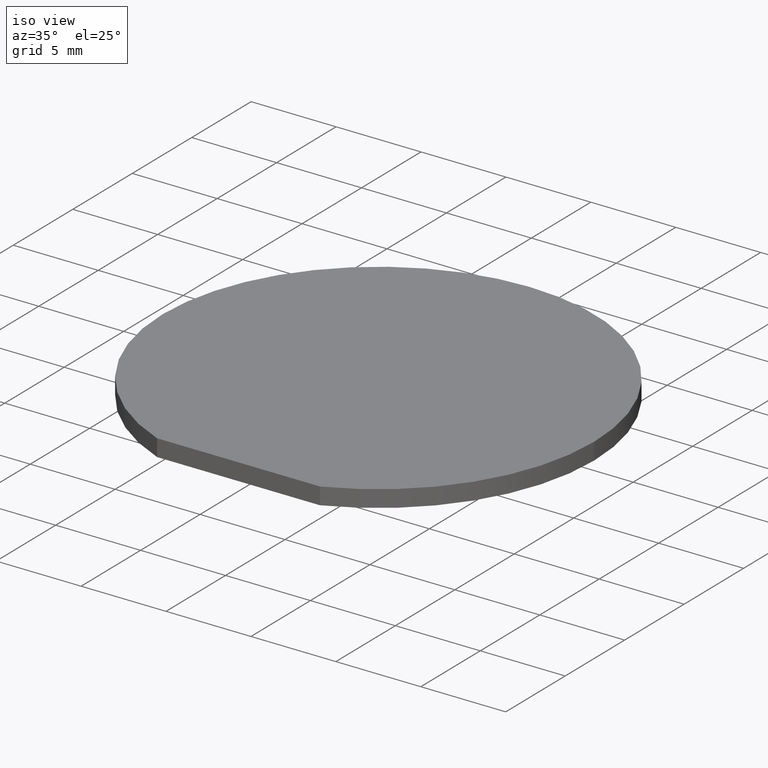
[diagram: clean part render]
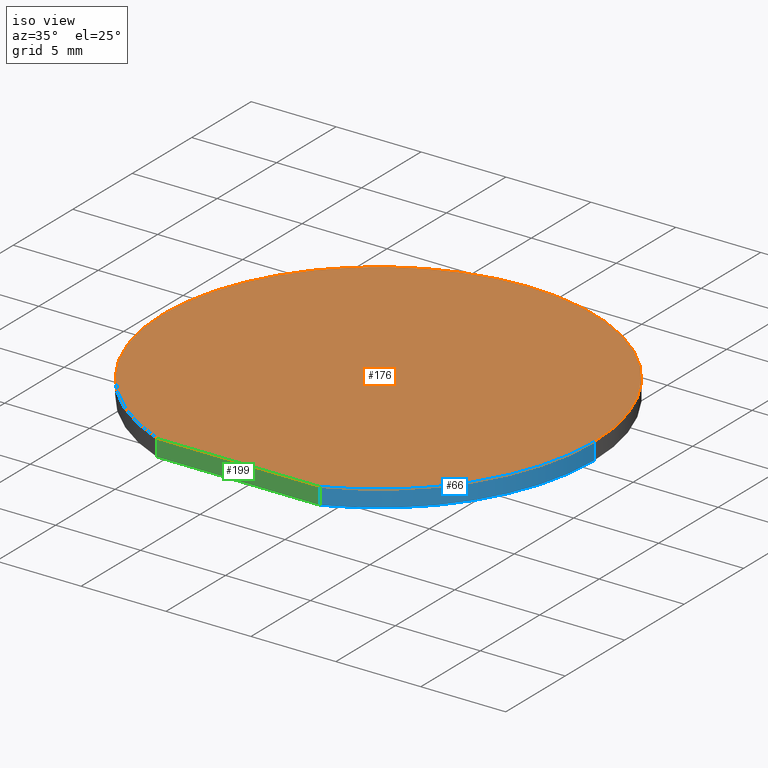
[diagram: same view with three faces highlighted in distinct colors, each labeled with its STEP entity id]
A machine part, iso view with three faces highlighted in distinct colors.
Their STEP definitions:

[orange] entity #176 — the highlighted planar face has unit normal (0, 0, 1).
#8 = DIRECTION ( 'NONE',  ( 0.0000000000000000000, 0.0000000000000000000, 1.000000000000000000 ) ) ;
#15 = AXIS2_PLACEMENT_3D ( 'NONE', #189, #169, #157 ) ;
#18 = ORIENTED_EDGE ( 'NONE', *, *, #39, .T. ) ;
#19 = CARTESIAN_POINT ( 'NONE',  ( -4.795039103073091447, -11.75999999999999979, 1.000000000000000000 ) ) ;
#22 = CARTESIAN_POINT ( 'NONE',  ( 0.0000000000000000000, 0.0000000000000000000, 1.000000000000000000 ) ) ;
#28 = EDGE_CURVE ( 'NONE', #152, #185, #85, .T. ) ;
#32 = EDGE_CURVE ( 'NONE', #152, #71, #100, .T. ) ;
#39 = EDGE_CURVE ( 'NONE', #71, #168, #190, .T. ) ;
#50 = PLANE ( 'NONE',  #79 ) ;
#51 = CARTESIAN_POINT ( 'NONE',  ( -12.69999999999999929, 0.0000000000000000000, 1.000000000000000000 ) ) ;
#56 = CARTESIAN_POINT ( 'NONE',  ( -5.887338073691013918, -11.75999999999999979, 1.000000000000000000 ) ) ;
#59 = DIRECTION ( 'NONE',  ( 0.0000000000000000000, 0.0000000000000000000, 1.000000000000000000 ) ) ;
#62 = CIRCLE ( 'NONE', #15, 12.69999999999999929 ) ;
#71 = VERTEX_POINT ( 'NONE', #201 ) ;
#79 = AXIS2_PLACEMENT_3D ( 'NONE', #96, #113, #197 ) ;
#81 = ORIENTED_EDGE ( 'NONE', *, *, #32, .T. ) ;
#85 = LINE ( 'NONE', #56, #200 ) ;
#94 = AXIS2_PLACEMENT_3D ( 'NONE', #117, #8, #153 ) ;
#96 = CARTESIAN_POINT ( 'NONE',  ( 0.0000000000000000000, 0.0000000000000000000, 1.000000000000000000 ) ) ;
#100 = CIRCLE ( 'NONE', #202, 12.69999999999999929 ) ;
#102 = DIRECTION ( 'NONE',  ( 1.000000000000000000, 0.0000000000000000000, 0.0000000000000000000 ) ) ;
#113 = DIRECTION ( 'NONE',  ( 0.0000000000000000000, 0.0000000000000000000, 1.000000000000000000 ) ) ;
#117 = CARTESIAN_POINT ( 'NONE',  ( 0.0000000000000000000, 0.0000000000000000000, 1.000000000000000000 ) ) ;
#132 = EDGE_LOOP ( 'NONE', ( #181, #81, #18, #149 ) ) ;
#135 = EDGE_CURVE ( 'NONE', #168, #185, #62, .T. ) ;
#142 = CARTESIAN_POINT ( 'NONE',  ( 4.795039103073092335, -11.75999999999999979, 1.000000000000000000 ) ) ;
#149 = ORIENTED_EDGE ( 'NONE', *, *, #135, .T. ) ;
#152 = VERTEX_POINT ( 'NONE', #142 ) ;
#153 = DIRECTION ( 'NONE',  ( 1.000000000000000000, 0.0000000000000000000, 0.0000000000000000000 ) ) ;
#157 = DIRECTION ( 'NONE',  ( 1.000000000000000000, 0.0000000000000000000, 0.0000000000000000000 ) ) ;
#162 = FACE_OUTER_BOUND ( 'NONE', #132, .T. ) ;
#167 = DIRECTION ( 'NONE',  ( -1.000000000000000000, -0.0000000000000000000, -0.0000000000000000000 ) ) ;
#168 = VERTEX_POINT ( 'NONE', #51 ) ;
#169 = DIRECTION ( 'NONE',  ( 0.0000000000000000000, 0.0000000000000000000, 1.000000000000000000 ) ) ;
#176 = ADVANCED_FACE ( 'NONE', ( #162 ), #50, .T. ) ;
#181 = ORIENTED_EDGE ( 'NONE', *, *, #28, .F. ) ;
#185 = VERTEX_POINT ( 'NONE', #19 ) ;
#189 = CARTESIAN_POINT ( 'NONE',  ( 0.0000000000000000000, 0.0000000000000000000, 1.000000000000000000 ) ) ;
#190 = CIRCLE ( 'NONE', #94, 12.69999999999999929 ) ;
#197 = DIRECTION ( 'NONE',  ( 1.000000000000000000, 0.0000000000000000000, -0.0000000000000000000 ) ) ;
#200 = VECTOR ( 'NONE', #167, 1000.000000000000000 ) ;
#201 = CARTESIAN_POINT ( 'NONE',  ( 12.69999999999999929, 1.555301434917138433E-15, 1.000000000000000000 ) ) ;
#202 = AXIS2_PLACEMENT_3D ( 'NONE', #22, #59, #102 ) ;

[blue] entity #66 — the highlighted cylindrical surface (partial cylindrical patch) has radius 12.7 mm, axis along (-0, -0, -1).
#4 = CARTESIAN_POINT ( 'NONE',  ( 0.0000000000000000000, 0.0000000000000000000, 0.0000000000000000000 ) ) ;
#11 = AXIS2_PLACEMENT_3D ( 'NONE', #4, #70, #193 ) ;
#21 = VECTOR ( 'NONE', #112, 1000.000000000000000 ) ;
#22 = CARTESIAN_POINT ( 'NONE',  ( 0.0000000000000000000, 0.0000000000000000000, 1.000000000000000000 ) ) ;
#25 = CIRCLE ( 'NONE', #11, 12.69999999999999929 ) ;
#32 = EDGE_CURVE ( 'NONE', #152, #71, #100, .T. ) ;
#34 = CARTESIAN_POINT ( 'NONE',  ( 4.795039103073092335, -11.75999999999999979, 0.0000000000000000000 ) ) ;
#38 = ORIENTED_EDGE ( 'NONE', *, *, #77, .F. ) ;
#40 = CYLINDRICAL_SURFACE ( 'NONE', #110, 12.69999999999999929 ) ;
#58 = ORIENTED_EDGE ( 'NONE', *, *, #32, .F. ) ;
#59 = DIRECTION ( 'NONE',  ( 0.0000000000000000000, 0.0000000000000000000, 1.000000000000000000 ) ) ;
#66 = ADVANCED_FACE ( 'NONE', ( #182 ), #40, .T. ) ;
#70 = DIRECTION ( 'NONE',  ( 0.0000000000000000000, 0.0000000000000000000, 1.000000000000000000 ) ) ;
#71 = VERTEX_POINT ( 'NONE', #201 ) ;
#72 = CARTESIAN_POINT ( 'NONE',  ( 0.0000000000000000000, 0.0000000000000000000, 1.000000000000000000 ) ) ;
#77 = EDGE_CURVE ( 'NONE', #71, #179, #119, .T. ) ;
#83 = ORIENTED_EDGE ( 'NONE', *, *, #183, .T. ) ;
#99 = DIRECTION ( 'NONE',  ( -0.0000000000000000000, -0.0000000000000000000, -1.000000000000000000 ) ) ;
#100 = CIRCLE ( 'NONE', #202, 12.69999999999999929 ) ;
#102 = DIRECTION ( 'NONE',  ( 1.000000000000000000, 0.0000000000000000000, 0.0000000000000000000 ) ) ;
#110 = AXIS2_PLACEMENT_3D ( 'NONE', #72, #99, #166 ) ;
#112 = DIRECTION ( 'NONE',  ( -0.0000000000000000000, -0.0000000000000000000, -1.000000000000000000 ) ) ;
#119 = LINE ( 'NONE', #184, #155 ) ;
#133 = CARTESIAN_POINT ( 'NONE',  ( 4.795039103073091447, -11.75999999999999979, 1.000000000000000000 ) ) ;
#134 = ORIENTED_EDGE ( 'NONE', *, *, #207, .T. ) ;
#142 = CARTESIAN_POINT ( 'NONE',  ( 4.795039103073092335, -11.75999999999999979, 1.000000000000000000 ) ) ;
#151 = DIRECTION ( 'NONE',  ( -0.0000000000000000000, -0.0000000000000000000, -1.000000000000000000 ) ) ;
#152 = VERTEX_POINT ( 'NONE', #142 ) ;
#155 = VECTOR ( 'NONE', #151, 1000.000000000000000 ) ;
#160 = VERTEX_POINT ( 'NONE', #34 ) ;
#164 = EDGE_LOOP ( 'NONE', ( #38, #58, #83, #134 ) ) ;
#166 = DIRECTION ( 'NONE',  ( -1.000000000000000000, 0.0000000000000000000, 0.0000000000000000000 ) ) ;
#178 = LINE ( 'NONE', #133, #21 ) ;
#179 = VERTEX_POINT ( 'NONE', #194 ) ;
#182 = FACE_OUTER_BOUND ( 'NONE', #164, .T. ) ;
#183 = EDGE_CURVE ( 'NONE', #152, #160, #178, .T. ) ;
#184 = CARTESIAN_POINT ( 'NONE',  ( 12.69999999999999929, 1.555301434917138433E-15, 1.000000000000000000 ) ) ;
#193 = DIRECTION ( 'NONE',  ( 1.000000000000000000, 0.0000000000000000000, 0.0000000000000000000 ) ) ;
#194 = CARTESIAN_POINT ( 'NONE',  ( 12.69999999999999929, 1.555301434917138433E-15, 0.0000000000000000000 ) ) ;
#201 = CARTESIAN_POINT ( 'NONE',  ( 12.69999999999999929, 1.555301434917138433E-15, 1.000000000000000000 ) ) ;
#202 = AXIS2_PLACEMENT_3D ( 'NONE', #22, #59, #102 ) ;
#207 = EDGE_CURVE ( 'NONE', #160, #179, #25, .T. ) ;

[green] entity #199 — the highlighted planar face has unit normal (-0, 1, 0).
#1 = VECTOR ( 'NONE', #26, 1000.000000000000000 ) ;
#2 = CARTESIAN_POINT ( 'NONE',  ( -5.887338073691013918, -11.75999999999999979, 0.0000000000000000000 ) ) ;
#9 = EDGE_LOOP ( 'NONE', ( #101, #24, #103, #53 ) ) ;
#17 = CARTESIAN_POINT ( 'NONE',  ( -4.795039103073091447, -11.75999999999999979, 1.000000000000000000 ) ) ;
#19 = CARTESIAN_POINT ( 'NONE',  ( -4.795039103073091447, -11.75999999999999979, 1.000000000000000000 ) ) ;
#21 = VECTOR ( 'NONE', #112, 1000.000000000000000 ) ;
#24 = ORIENTED_EDGE ( 'NONE', *, *, #129, .F. ) ;
#26 = DIRECTION ( 'NONE',  ( -1.000000000000000000, -0.0000000000000000000, 0.0000000000000000000 ) ) ;
#28 = EDGE_CURVE ( 'NONE', #152, #185, #85, .T. ) ;
#34 = CARTESIAN_POINT ( 'NONE',  ( 4.795039103073092335, -11.75999999999999979, 0.0000000000000000000 ) ) ;
#41 = VECTOR ( 'NONE', #121, 1000.000000000000000 ) ;
#46 = LINE ( 'NONE', #107, #1 ) ;
#53 = ORIENTED_EDGE ( 'NONE', *, *, #183, .F. ) ;
#56 = CARTESIAN_POINT ( 'NONE',  ( -5.887338073691013918, -11.75999999999999979, 1.000000000000000000 ) ) ;
#67 = AXIS2_PLACEMENT_3D ( 'NONE', #2, #148, #131 ) ;
#68 = PLANE ( 'NONE',  #67 ) ;
#82 = FACE_OUTER_BOUND ( 'NONE', #9, .T. ) ;
#84 = CARTESIAN_POINT ( 'NONE',  ( -4.795039103073091447, -11.75999999999999979, 0.0000000000000000000 ) ) ;
#85 = LINE ( 'NONE', #56, #200 ) ;
#92 = LINE ( 'NONE', #17, #41 ) ;
#97 = VERTEX_POINT ( 'NONE', #84 ) ;
#101 = ORIENTED_EDGE ( 'NONE', *, *, #28, .T. ) ;
#103 = ORIENTED_EDGE ( 'NONE', *, *, #139, .F. ) ;
#107 = CARTESIAN_POINT ( 'NONE',  ( 0.0000000000000000000, -11.75999999999999979, 0.0000000000000000000 ) ) ;
#112 = DIRECTION ( 'NONE',  ( -0.0000000000000000000, -0.0000000000000000000, -1.000000000000000000 ) ) ;
#121 = DIRECTION ( 'NONE',  ( 0.0000000000000000000, 0.0000000000000000000, 1.000000000000000000 ) ) ;
#129 = EDGE_CURVE ( 'NONE', #97, #185, #92, .T. ) ;
#131 = DIRECTION ( 'NONE',  ( 0.0000000000000000000, -0.0000000000000000000, 1.000000000000000000 ) ) ;
#133 = CARTESIAN_POINT ( 'NONE',  ( 4.795039103073091447, -11.75999999999999979, 1.000000000000000000 ) ) ;
#139 = EDGE_CURVE ( 'NONE', #160, #97, #46, .T. ) ;
#142 = CARTESIAN_POINT ( 'NONE',  ( 4.795039103073092335, -11.75999999999999979, 1.000000000000000000 ) ) ;
#148 = DIRECTION ( 'NONE',  ( -0.0000000000000000000, 1.000000000000000000, 0.0000000000000000000 ) ) ;
#152 = VERTEX_POINT ( 'NONE', #142 ) ;
#160 = VERTEX_POINT ( 'NONE', #34 ) ;
#167 = DIRECTION ( 'NONE',  ( -1.000000000000000000, -0.0000000000000000000, -0.0000000000000000000 ) ) ;
#178 = LINE ( 'NONE', #133, #21 ) ;
#183 = EDGE_CURVE ( 'NONE', #152, #160, #178, .T. ) ;
#185 = VERTEX_POINT ( 'NONE', #19 ) ;
#199 = ADVANCED_FACE ( 'NONE', ( #82 ), #68, .F. ) ;
#200 = VECTOR ( 'NONE', #167, 1000.000000000000000 ) ;